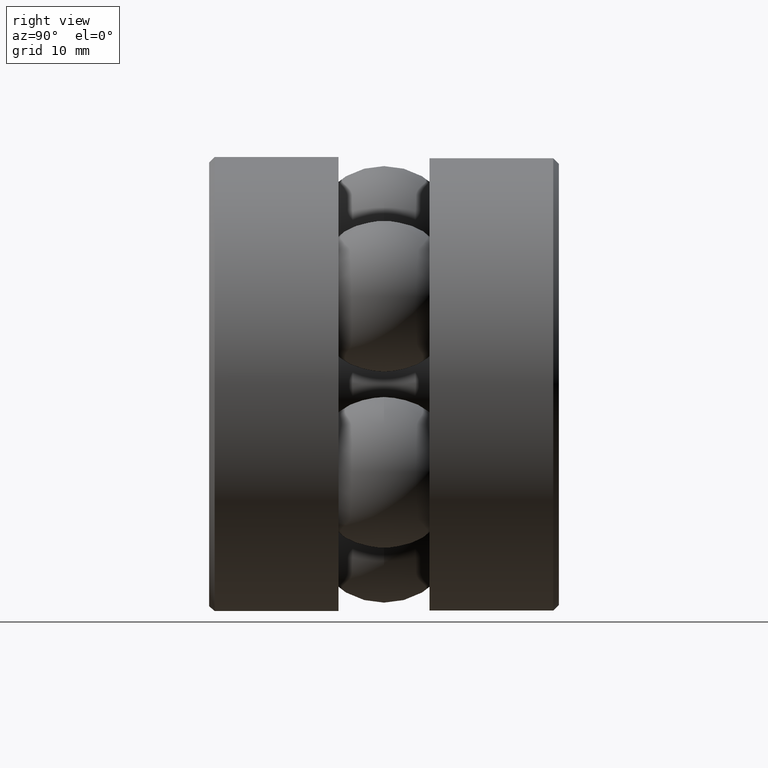
[diagram: clean part render]
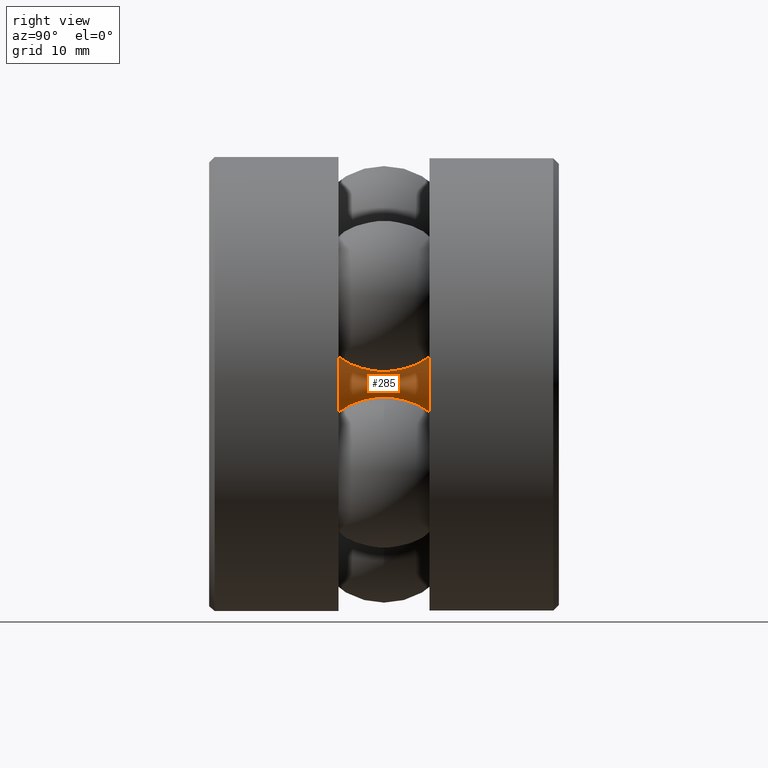
[diagram: same view with one face highlighted and labeled with its STEP entity id]
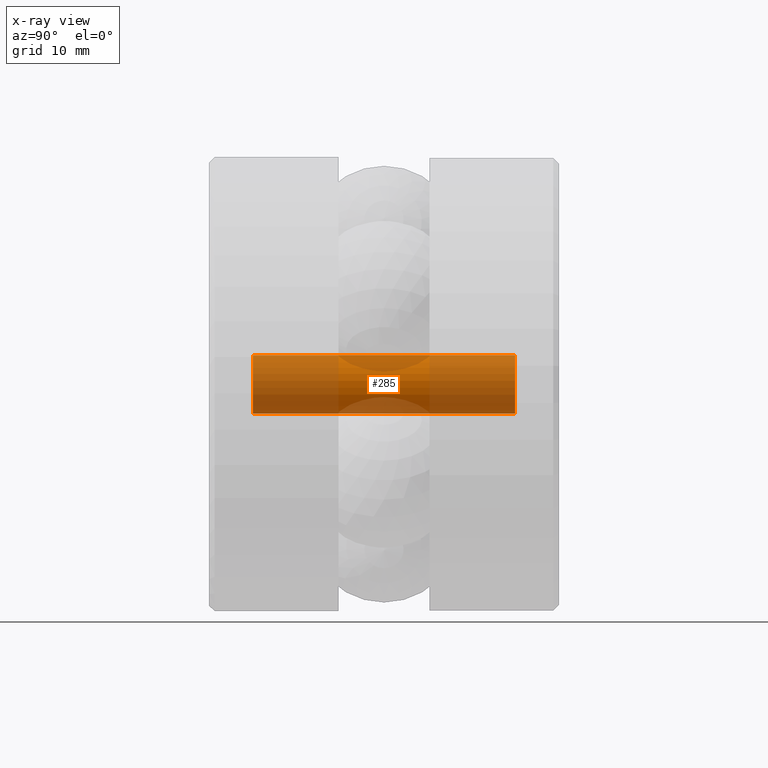
[diagram: x-ray of the same camera — body ghosted, the highlighted face saturated]
A machine part, right view. The second image highlights one B-rep face of the part: STEP entity #285.
The next image is the same camera in x-ray: the body ghosted, the highlighted face saturated — about 79% of this face is hidden behind the body in this view.
In plain terms, the highlighted cylindrical surface (bore or boss wall) has radius 3.9624 mm, axis along (-0, 1, -0).
Its self-contained STEP definition (entity closure, byte-faithful):
#15 = CYLINDRICAL_SURFACE ( 'NONE', #488, 0.1560000000000001700 ) ;
#100 = DIRECTION ( 'NONE',  ( -0.0000000000000000000, 1.000000000000000000, -0.0000000000000000000 ) ) ;
#127 = AXIS2_PLACEMENT_3D ( 'NONE', #159, #431, #193 ) ;
#157 = DIRECTION ( 'NONE',  ( -0.0000000000000000000, 1.000000000000000000, -0.0000000000000000000 ) ) ;
#159 = CARTESIAN_POINT ( 'NONE',  ( 0.0000000000000000000, 0.2343750000000001100, 0.0000000000000000000 ) ) ;
#163 = CIRCLE ( 'NONE', #127, 0.1560000000000000300 ) ;
#172 = ORIENTED_EDGE ( 'NONE', *, *, #509, .F. ) ;
#193 = DIRECTION ( 'NONE',  ( 0.0000000000000000000, 0.0000000000000000000, 1.000000000000000000 ) ) ;
#196 = EDGE_LOOP ( 'NONE', ( #172 ) ) ;
#275 = CARTESIAN_POINT ( 'NONE',  ( 0.0000000000000000000, 0.2343750000000001100, 0.1560000000000000300 ) ) ;
#285 = ADVANCED_FACE ( 'NONE', ( #348, #466 ), #15, .T. ) ;
#328 = EDGE_LOOP ( 'NONE', ( #499 ) ) ;
#336 = CARTESIAN_POINT ( 'NONE',  ( 0.0000000000000000000, 0.0000000000000000000, 0.0000000000000000000 ) ) ;
#348 = FACE_OUTER_BOUND ( 'NONE', #328, .T. ) ;
#376 = DIRECTION ( 'NONE',  ( 0.0000000000000000000, 0.0000000000000000000, 1.000000000000000000 ) ) ;
#386 = CARTESIAN_POINT ( 'NONE',  ( 0.0000000000000000000, 1.640625000000000200, 0.0000000000000000000 ) ) ;
#408 = VERTEX_POINT ( 'NONE', #275 ) ;
#427 = DIRECTION ( 'NONE',  ( 0.0000000000000000000, 0.0000000000000000000, 1.000000000000000000 ) ) ;
#431 = DIRECTION ( 'NONE',  ( -0.0000000000000000000, 1.000000000000000000, -0.0000000000000000000 ) ) ;
#466 = FACE_OUTER_BOUND ( 'NONE', #196, .T. ) ;
#488 = AXIS2_PLACEMENT_3D ( 'NONE', #336, #100, #376 ) ;
#497 = CIRCLE ( 'NONE', #535, 0.1560000000000003100 ) ;
#499 = ORIENTED_EDGE ( 'NONE', *, *, #541, .T. ) ;
#509 = EDGE_CURVE ( 'NONE', #514, #514, #497, .T. ) ;
#511 = CARTESIAN_POINT ( 'NONE',  ( 0.0000000000000000000, 1.640625000000000200, 0.1560000000000003100 ) ) ;
#514 = VERTEX_POINT ( 'NONE', #511 ) ;
#535 = AXIS2_PLACEMENT_3D ( 'NONE', #386, #157, #427 ) ;
#541 = EDGE_CURVE ( 'NONE', #408, #408, #163, .T. ) ;